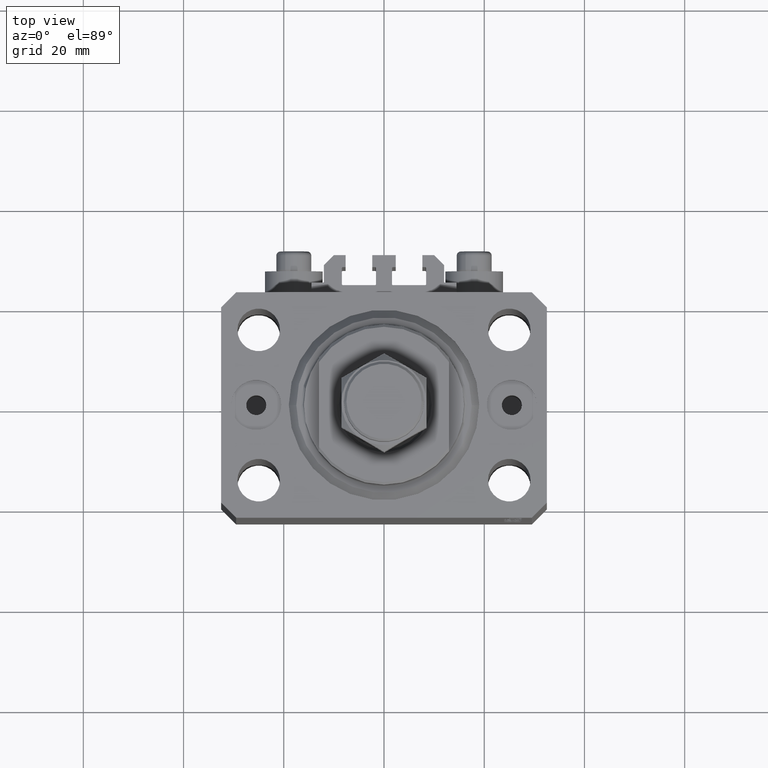
[diagram: clean part render]
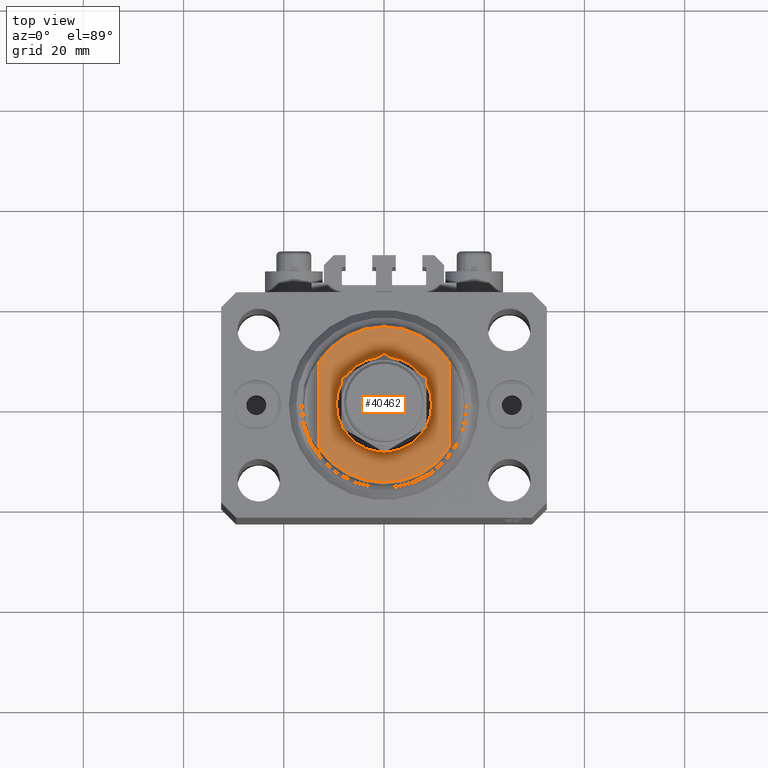
[diagram: same view with one face highlighted and labeled with its STEP entity id]
A machine part, top view. The second image highlights one B-rep face of the part: STEP entity #40462.
In plain terms, the highlighted planar face has unit normal (0, 0, 1).
Its self-contained STEP definition (entity closure, byte-faithful):
#532 = EDGE_CURVE ( 'NONE', #18008, #3551, #35882, .T. ) ;
#875 = VERTEX_POINT ( 'NONE', #17479 ) ;
#985 = CARTESIAN_POINT ( 'NONE',  ( 13.00000000000000000, -43.08131845707602992, -6.500000000000000000 ) ) ;
#2184 = CIRCLE ( 'NONE', #8485, 9.500000000000015987 ) ;
#2378 = DIRECTION ( 'NONE',  ( -0.000000000000000000, -1.000000000000000000, -0.000000000000000000 ) ) ;
#3551 = VERTEX_POINT ( 'NONE', #8790 ) ;
#5839 = CARTESIAN_POINT ( 'NONE',  ( -13.00000000000000000, -43.08131845707602992, -6.500000000000000000 ) ) ;
#6742 = CARTESIAN_POINT ( 'NONE',  ( -13.00000000000000000, -8.440971508067139695, -6.500000000000000000 ) ) ;
#8485 = AXIS2_PLACEMENT_3D ( 'NONE', #45573, #11737, #34464 ) ;
#8790 = CARTESIAN_POINT ( 'NONE',  ( 13.00000000000000000, 8.440971508067139695, -6.500000000000000000 ) ) ;
#8824 = VERTEX_POINT ( 'NONE', #31155 ) ;
#9208 = AXIS2_PLACEMENT_3D ( 'NONE', #13417, #19833, #24047 ) ;
#9299 = DIRECTION ( 'NONE',  ( -1.000000000000000000, 0.000000000000000000, -0.000000000000000000 ) ) ;
#11737 = DIRECTION ( 'NONE',  ( -0.000000000000000000, -0.000000000000000000, 1.000000000000000000 ) ) ;
#13154 = AXIS2_PLACEMENT_3D ( 'NONE', #15042, #29392, #30116 ) ;
#13417 = CARTESIAN_POINT ( 'NONE',  ( 0.000000000000000000, 0.000000000000000000, -6.500000000000000000 ) ) ;
#15042 = CARTESIAN_POINT ( 'NONE',  ( 0.000000000000000000, 0.000000000000000000, -6.500000000000000000 ) ) ;
#15326 = DIRECTION ( 'NONE',  ( 0.000000000000000000, -1.000000000000000000, -0.000000000000000000 ) ) ;
#15837 = DIRECTION ( 'NONE',  ( 0.000000000000000000, 0.000000000000000000, -1.000000000000000000 ) ) ;
#17188 = DIRECTION ( 'NONE',  ( 0.000000000000000000, 0.000000000000000000, -1.000000000000000000 ) ) ;
#17470 = VECTOR ( 'NONE', #15326, 1000.000000000000000 ) ;
#17479 = CARTESIAN_POINT ( 'NONE',  ( -9.500000000000015987, 0.000000000000000000, -6.500000000000000000 ) ) ;
#18008 = VERTEX_POINT ( 'NONE', #28056 ) ;
#18487 = ORIENTED_EDGE ( 'NONE', *, *, #40927, .T. ) ;
#18996 = VERTEX_POINT ( 'NONE', #6742 ) ;
#19833 = DIRECTION ( 'NONE',  ( -0.000000000000000000, -0.000000000000000000, 1.000000000000000000 ) ) ;
#20279 = CARTESIAN_POINT ( 'NONE',  ( 0.000000000000000000, 0.000000000000000000, -6.500000000000000000 ) ) ;
#20655 = PLANE ( 'NONE',  #32428 ) ;
#20690 = ORIENTED_EDGE ( 'NONE', *, *, #29085, .T. ) ;
#24047 = DIRECTION ( 'NONE',  ( -1.000000000000000000, 0.000000000000000000, 0.000000000000000000 ) ) ;
#24367 = FACE_BOUND ( 'NONE', #41813, .T. ) ;
#24864 = LINE ( 'NONE', #5839, #25819 ) ;
#25018 = EDGE_CURVE ( 'NONE', #28997, #875, #39951, .T. ) ;
#25819 = VECTOR ( 'NONE', #2378, 1000.000000000000000 ) ;
#26166 = CARTESIAN_POINT ( 'NONE',  ( 9.500000000000015987, 1.163414459189987457E-15, -6.500000000000000000 ) ) ;
#27591 = CARTESIAN_POINT ( 'NONE',  ( 0.000000000000000000, 0.000000000000000000, -6.500000000000000000 ) ) ;
#28056 = CARTESIAN_POINT ( 'NONE',  ( -13.00000000000000000, 8.440971508067139695, -6.500000000000000000 ) ) ;
#28395 = ORIENTED_EDGE ( 'NONE', *, *, #32889, .T. ) ;
#28997 = VERTEX_POINT ( 'NONE', #26166 ) ;
#29085 = EDGE_CURVE ( 'NONE', #8824, #18996, #35216, .T. ) ;
#29392 = DIRECTION ( 'NONE',  ( 0.000000000000000000, 0.000000000000000000, -1.000000000000000000 ) ) ;
#30116 = DIRECTION ( 'NONE',  ( -1.000000000000000000, 0.000000000000000000, 0.000000000000000000 ) ) ;
#30192 = EDGE_CURVE ( 'NONE', #18008, #18996, #24864, .T. ) ;
#31155 = CARTESIAN_POINT ( 'NONE',  ( 13.00000000000000000, -8.440971508067139695, -6.500000000000000000 ) ) ;
#32428 = AXIS2_PLACEMENT_3D ( 'NONE', #27591, #17188, #9299 ) ;
#32889 = EDGE_CURVE ( 'NONE', #875, #28997, #2184, .T. ) ;
#34464 = DIRECTION ( 'NONE',  ( -1.000000000000000000, 0.000000000000000000, 0.000000000000000000 ) ) ;
#34811 = LINE ( 'NONE', #985, #17470 ) ;
#35216 = CIRCLE ( 'NONE', #13154, 15.50000000000003730 ) ;
#35882 = CIRCLE ( 'NONE', #47688, 15.50000000000003730 ) ;
#35889 = ORIENTED_EDGE ( 'NONE', *, *, #532, .T. ) ;
#38327 = DIRECTION ( 'NONE',  ( -1.000000000000000000, 0.000000000000000000, 0.000000000000000000 ) ) ;
#39951 = CIRCLE ( 'NONE', #9208, 9.500000000000015987 ) ;
#40462 = ADVANCED_FACE ( 'NONE', ( #24367, #47084 ), #20655, .T. ) ;
#40927 = EDGE_CURVE ( 'NONE', #3551, #8824, #34811, .T. ) ;
#41813 = EDGE_LOOP ( 'NONE', ( #28395, #43151 ) ) ;
#43151 = ORIENTED_EDGE ( 'NONE', *, *, #25018, .T. ) ;
#45573 = CARTESIAN_POINT ( 'NONE',  ( 0.000000000000000000, 0.000000000000000000, -6.500000000000000000 ) ) ;
#46097 = ORIENTED_EDGE ( 'NONE', *, *, #30192, .F. ) ;
#47084 = FACE_OUTER_BOUND ( 'NONE', #47673, .T. ) ;
#47673 = EDGE_LOOP ( 'NONE', ( #35889, #18487, #20690, #46097 ) ) ;
#47688 = AXIS2_PLACEMENT_3D ( 'NONE', #20279, #15837, #38327 ) ;